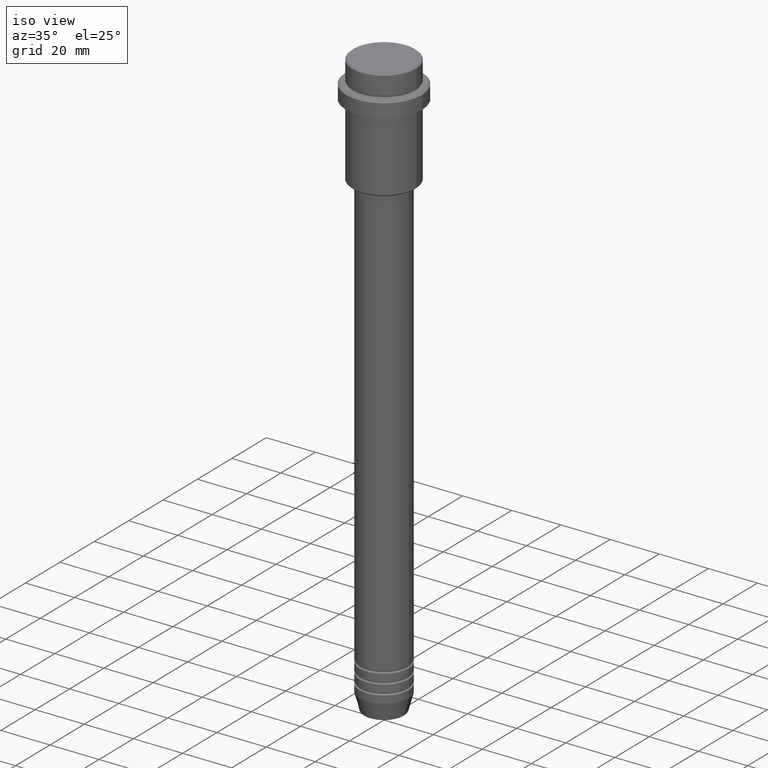
[diagram: clean part render]
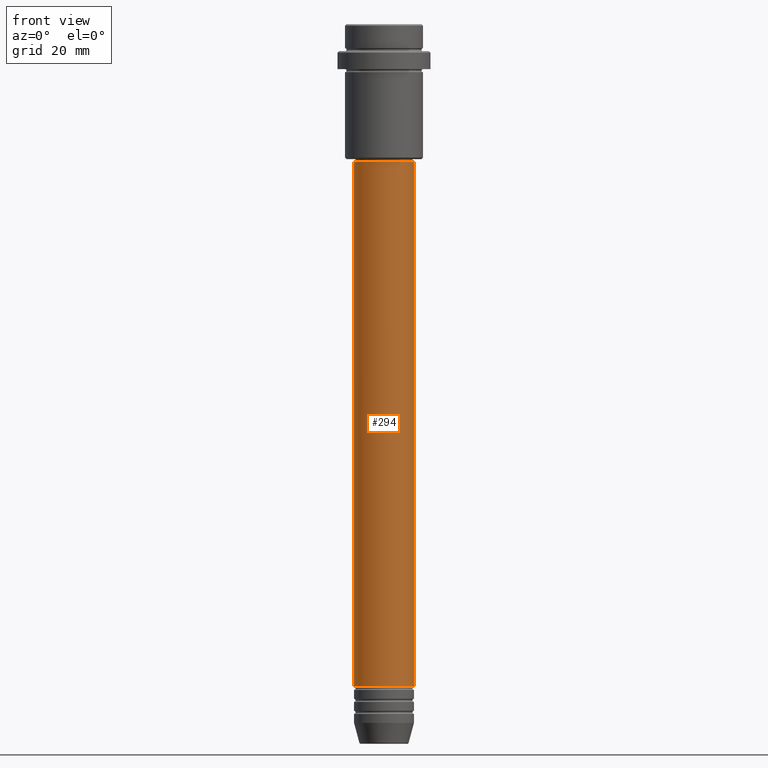
[diagram: tour spotlight — one face highlighted and labeled with its STEP entity id]
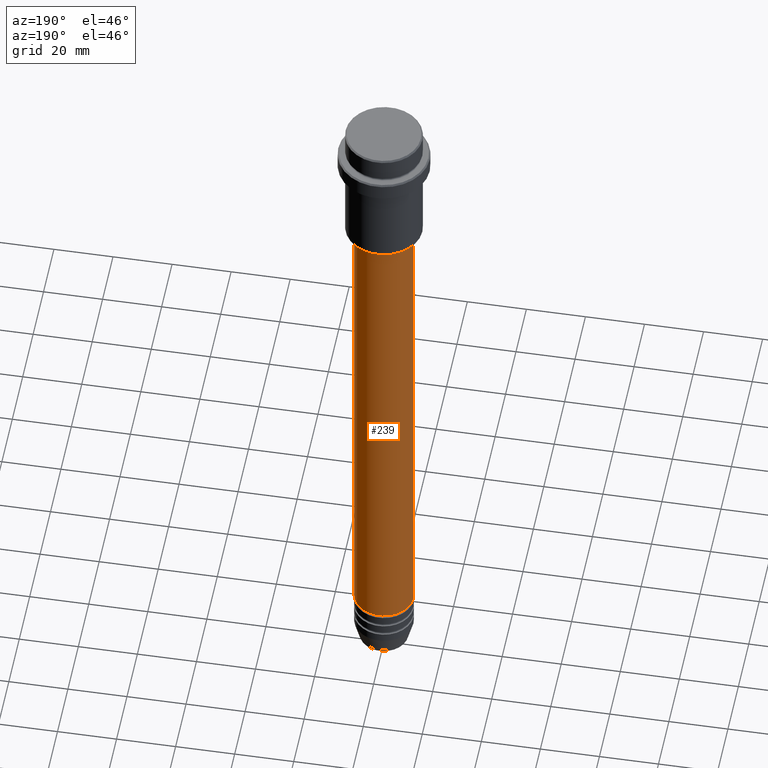
[diagram: tour spotlight — one face highlighted and labeled with its STEP entity id]
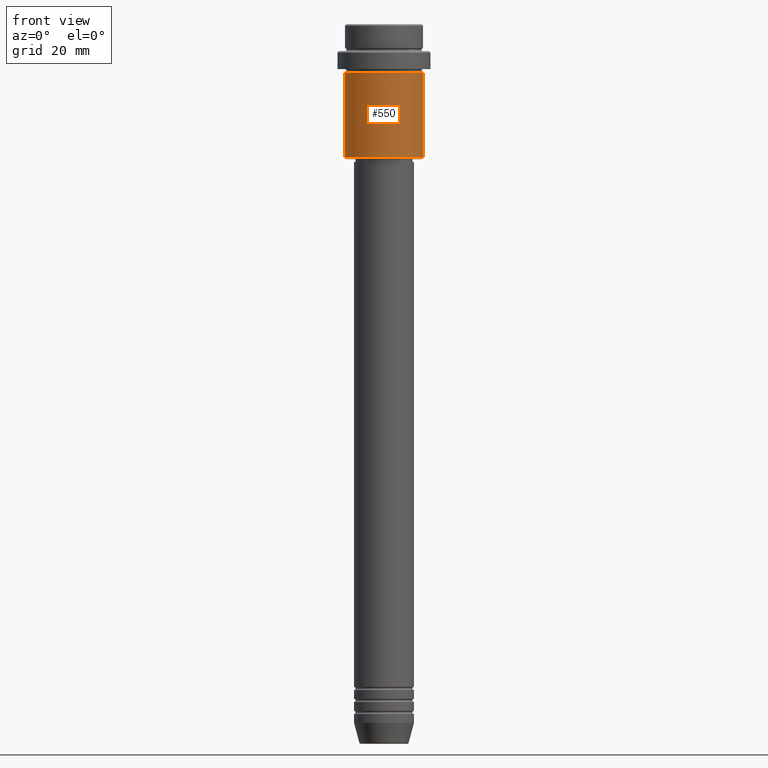
[diagram: tour spotlight — one face highlighted and labeled with its STEP entity id]
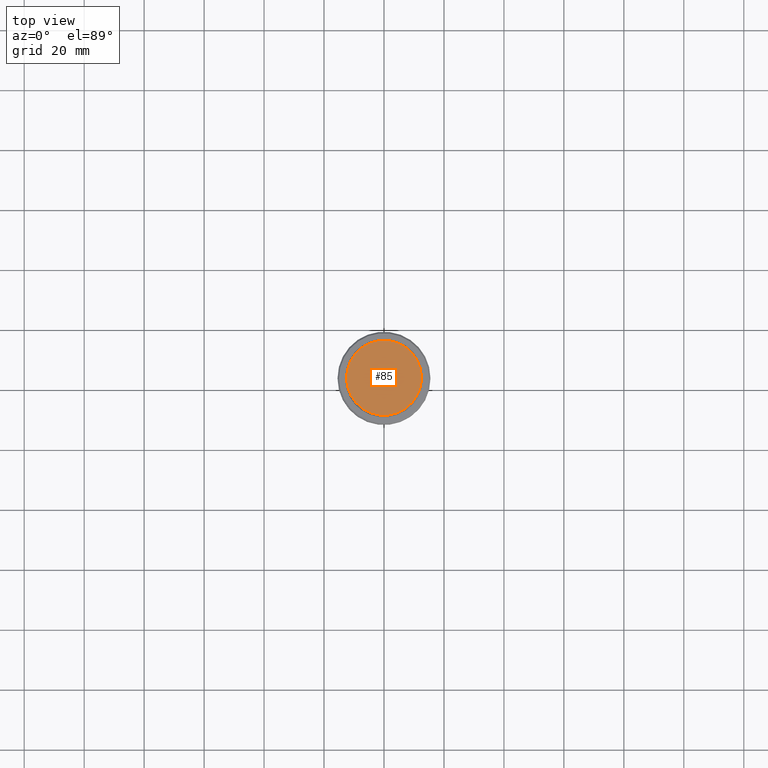
[diagram: tour spotlight — one face highlighted and labeled with its STEP entity id]
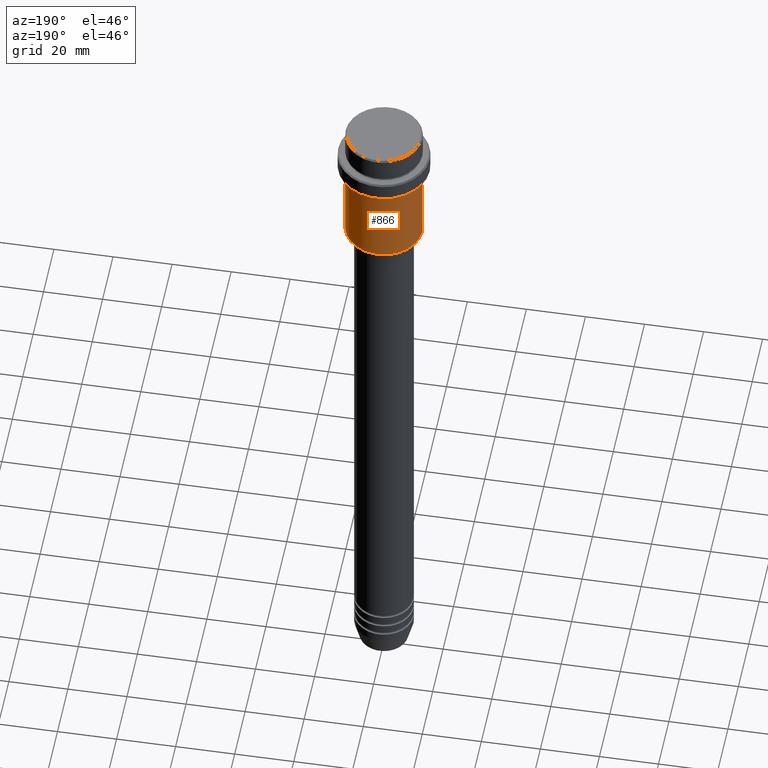
[diagram: tour spotlight — one face highlighted and labeled with its STEP entity id]
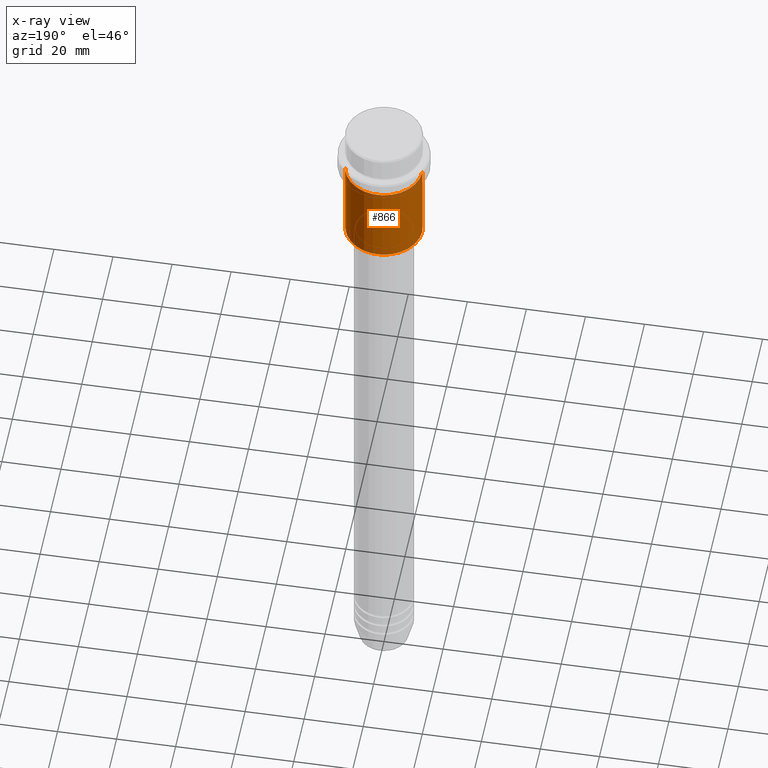
[diagram: x-ray of the same camera — body ghosted, this tour face saturated]
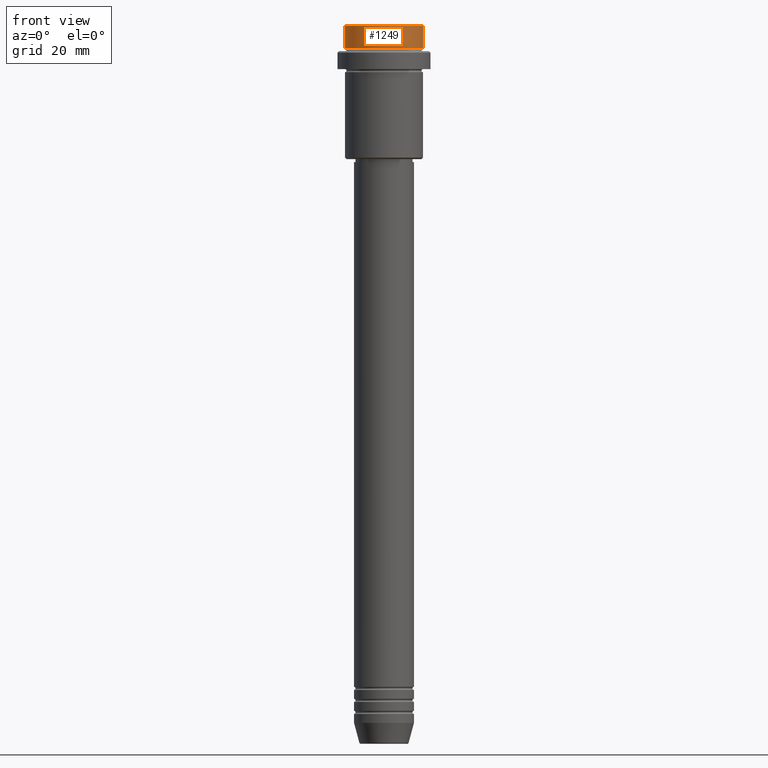
[diagram: tour spotlight — one face highlighted and labeled with its STEP entity id]
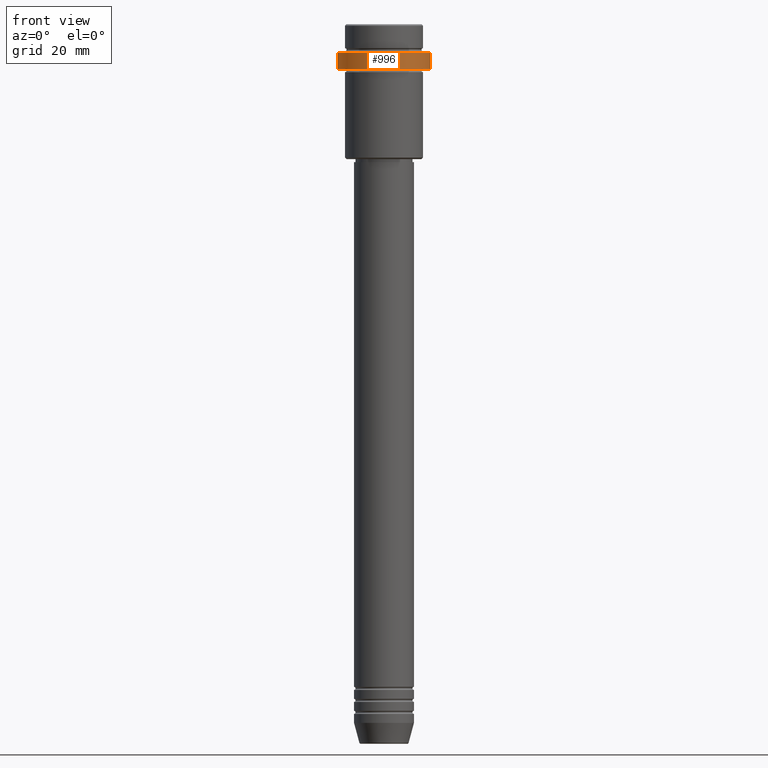
[diagram: tour spotlight — one face highlighted and labeled with its STEP entity id]
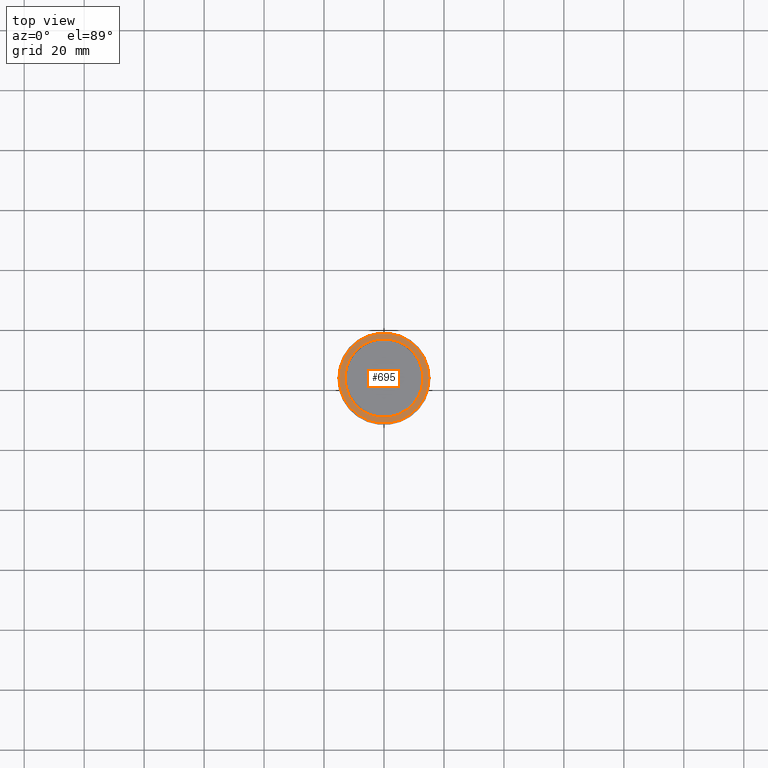
[diagram: tour spotlight — one face highlighted and labeled with its STEP entity id]
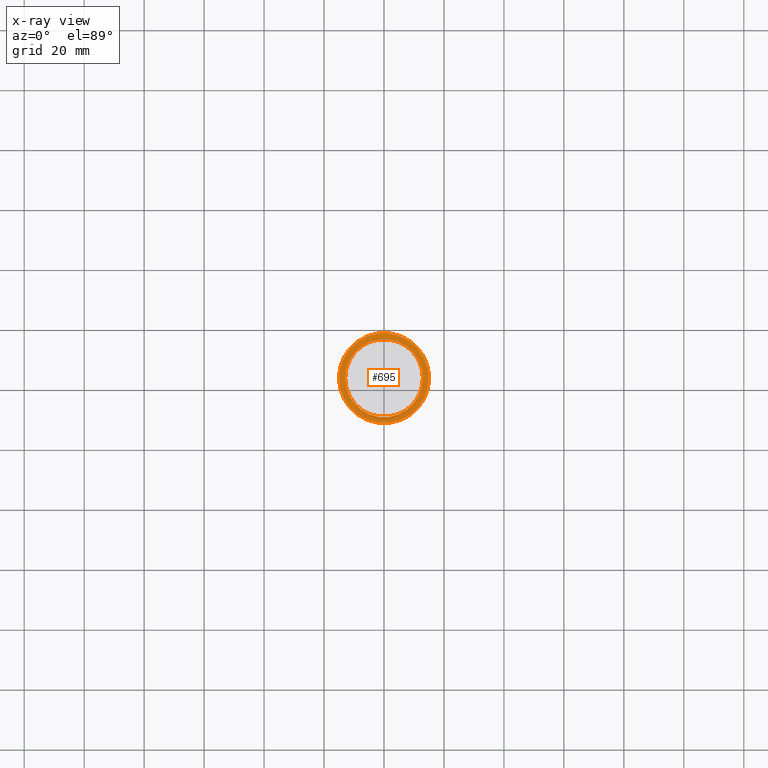
[diagram: x-ray of the same camera — body ghosted, this tour face saturated]
A machine part: a face-by-face anatomy tour. The part has 52 B-rep faces; the first image is the clean iso view, then the 8 largest visible faces are spotlighted one at a time (largest first), each with its STEP entity span.

Face 1 — front view, entity #294. In plain terms, the highlighted cylindrical surface (edge-blend (fillet) strip) has radius 10 mm, axis along (-0, -0, 1).
Definition (entity closure, byte-faithful):
#16 = DIRECTION ( 'NONE',  ( 1.000000000000000000, 0.000000000000000000, 0.000000000000000000 ) ) ;
#55 = CARTESIAN_POINT ( 'NONE',  ( 10.00000000000000178, 0.000000000000000000, -46.00000000000002132 ) ) ;
#65 = CARTESIAN_POINT ( 'NONE',  ( -10.00000000000000178, 1.224646799147353454E-15, -46.00000000000002132 ) ) ;
#144 = VECTOR ( 'NONE', #1178, 1000.000000000000000 ) ;
#179 = EDGE_CURVE ( 'NONE', #1399, #967, #951, .T. ) ;
#198 = LINE ( 'NONE', #728, #1027 ) ;
#199 = DIRECTION ( 'NONE',  ( -0.000000000000000000, -0.000000000000000000, 1.000000000000000000 ) ) ;
#220 = CARTESIAN_POINT ( 'NONE',  ( 0.000000000000000000, 0.000000000000000000, 0.000000000000000000 ) ) ;
#294 = ADVANCED_FACE ( 'NONE', ( #1221 ), #1334, .T. ) ;
#297 = CARTESIAN_POINT ( 'NONE',  ( -10.00000000000000000, 1.224646799147353256E-15, -220.9999999999999432 ) ) ;
#311 = CARTESIAN_POINT ( 'NONE',  ( 0.000000000000000000, 0.000000000000000000, -46.00000000000002132 ) ) ;
#423 = CARTESIAN_POINT ( 'NONE',  ( 10.00000000000000178, 0.000000000000000000, 0.000000000000000000 ) ) ;
#465 = AXIS2_PLACEMENT_3D ( 'NONE', #900, #801, #16 ) ;
#538 = LINE ( 'NONE', #423, #144 ) ;
#547 = EDGE_CURVE ( 'NONE', #969, #1399, #198, .T. ) ;
#584 = ORIENTED_EDGE ( 'NONE', *, *, #804, .T. ) ;
#728 = CARTESIAN_POINT ( 'NONE',  ( -10.00000000000000178, 1.224646799147353454E-15, 0.000000000000000000 ) ) ;
#746 = CIRCLE ( 'NONE', #465, 10.00000000000000000 ) ;
#801 = DIRECTION ( 'NONE',  ( -0.000000000000000000, -0.000000000000000000, 1.000000000000000000 ) ) ;
#804 = EDGE_CURVE ( 'NONE', #969, #1023, #746, .T. ) ;
#868 = DIRECTION ( 'NONE',  ( -0.000000000000000000, -0.000000000000000000, 1.000000000000000000 ) ) ;
#900 = CARTESIAN_POINT ( 'NONE',  ( 0.000000000000000000, 0.000000000000000000, -220.9999999999999432 ) ) ;
#934 = ORIENTED_EDGE ( 'NONE', *, *, #547, .F. ) ;
#951 = CIRCLE ( 'NONE', #1238, 10.00000000000000178 ) ;
#967 = VERTEX_POINT ( 'NONE', #55 ) ;
#969 = VERTEX_POINT ( 'NONE', #297 ) ;
#971 = CARTESIAN_POINT ( 'NONE',  ( 10.00000000000000000, 0.000000000000000000, -220.9999999999999432 ) ) ;
#988 = EDGE_LOOP ( 'NONE', ( #934, #584, #998, #994 ) ) ;
#994 = ORIENTED_EDGE ( 'NONE', *, *, #179, .F. ) ;
#998 = ORIENTED_EDGE ( 'NONE', *, *, #1076, .T. ) ;
#999 = DIRECTION ( 'NONE',  ( 1.000000000000000000, 0.000000000000000000, 0.000000000000000000 ) ) ;
#1023 = VERTEX_POINT ( 'NONE', #971 ) ;
#1027 = VECTOR ( 'NONE', #1287, 1000.000000000000000 ) ;
#1076 = EDGE_CURVE ( 'NONE', #1023, #967, #538, .T. ) ;
#1178 = DIRECTION ( 'NONE',  ( -0.000000000000000000, -0.000000000000000000, 1.000000000000000000 ) ) ;
#1221 = FACE_OUTER_BOUND ( 'NONE', #988, .T. ) ;
#1238 = AXIS2_PLACEMENT_3D ( 'NONE', #311, #199, #1416 ) ;
#1282 = AXIS2_PLACEMENT_3D ( 'NONE', #220, #868, #999 ) ;
#1287 = DIRECTION ( 'NONE',  ( -0.000000000000000000, -0.000000000000000000, 1.000000000000000000 ) ) ;
#1334 = CYLINDRICAL_SURFACE ( 'NONE', #1282, 10.00000000000000178 ) ;
#1399 = VERTEX_POINT ( 'NONE', #65 ) ;
#1416 = DIRECTION ( 'NONE',  ( 1.000000000000000000, 0.000000000000000000, 0.000000000000000000 ) ) ;

Face 2 — auxiliary view, entity #239. In plain terms, the highlighted cylindrical surface (edge-blend (fillet) strip) has radius 10 mm, axis along (-0, -0, 1).
Definition (entity closure, byte-faithful):
#7 = AXIS2_PLACEMENT_3D ( 'NONE', #878, #677, #473 ) ;
#55 = CARTESIAN_POINT ( 'NONE',  ( 10.00000000000000178, 0.000000000000000000, -46.00000000000002132 ) ) ;
#65 = CARTESIAN_POINT ( 'NONE',  ( -10.00000000000000178, 1.224646799147353454E-15, -46.00000000000002132 ) ) ;
#144 = VECTOR ( 'NONE', #1178, 1000.000000000000000 ) ;
#187 = CYLINDRICAL_SURFACE ( 'NONE', #391, 10.00000000000000178 ) ;
#196 = ORIENTED_EDGE ( 'NONE', *, *, #1076, .F. ) ;
#198 = LINE ( 'NONE', #728, #1027 ) ;
#239 = ADVANCED_FACE ( 'NONE', ( #753 ), #187, .T. ) ;
#261 = CIRCLE ( 'NONE', #867, 10.00000000000000178 ) ;
#297 = CARTESIAN_POINT ( 'NONE',  ( -10.00000000000000000, 1.224646799147353256E-15, -220.9999999999999432 ) ) ;
#391 = AXIS2_PLACEMENT_3D ( 'NONE', #1310, #722, #516 ) ;
#423 = CARTESIAN_POINT ( 'NONE',  ( 10.00000000000000178, 0.000000000000000000, 0.000000000000000000 ) ) ;
#466 = ORIENTED_EDGE ( 'NONE', *, *, #1161, .T. ) ;
#473 = DIRECTION ( 'NONE',  ( 1.000000000000000000, 0.000000000000000000, 0.000000000000000000 ) ) ;
#516 = DIRECTION ( 'NONE',  ( 1.000000000000000000, 0.000000000000000000, 0.000000000000000000 ) ) ;
#538 = LINE ( 'NONE', #423, #144 ) ;
#547 = EDGE_CURVE ( 'NONE', #969, #1399, #198, .T. ) ;
#677 = DIRECTION ( 'NONE',  ( -0.000000000000000000, -0.000000000000000000, 1.000000000000000000 ) ) ;
#722 = DIRECTION ( 'NONE',  ( -0.000000000000000000, -0.000000000000000000, 1.000000000000000000 ) ) ;
#728 = CARTESIAN_POINT ( 'NONE',  ( -10.00000000000000178, 1.224646799147353454E-15, 0.000000000000000000 ) ) ;
#753 = FACE_OUTER_BOUND ( 'NONE', #1042, .T. ) ;
#845 = DIRECTION ( 'NONE',  ( 1.000000000000000000, 0.000000000000000000, 0.000000000000000000 ) ) ;
#867 = AXIS2_PLACEMENT_3D ( 'NONE', #1206, #1407, #845 ) ;
#878 = CARTESIAN_POINT ( 'NONE',  ( 0.000000000000000000, 0.000000000000000000, -220.9999999999999432 ) ) ;
#912 = ORIENTED_EDGE ( 'NONE', *, *, #547, .T. ) ;
#967 = VERTEX_POINT ( 'NONE', #55 ) ;
#969 = VERTEX_POINT ( 'NONE', #297 ) ;
#971 = CARTESIAN_POINT ( 'NONE',  ( 10.00000000000000000, 0.000000000000000000, -220.9999999999999432 ) ) ;
#1023 = VERTEX_POINT ( 'NONE', #971 ) ;
#1027 = VECTOR ( 'NONE', #1287, 1000.000000000000000 ) ;
#1042 = EDGE_LOOP ( 'NONE', ( #466, #912, #1231, #196 ) ) ;
#1076 = EDGE_CURVE ( 'NONE', #1023, #967, #538, .T. ) ;
#1083 = EDGE_CURVE ( 'NONE', #967, #1399, #261, .T. ) ;
#1161 = EDGE_CURVE ( 'NONE', #1023, #969, #1354, .T. ) ;
#1178 = DIRECTION ( 'NONE',  ( -0.000000000000000000, -0.000000000000000000, 1.000000000000000000 ) ) ;
#1206 = CARTESIAN_POINT ( 'NONE',  ( 0.000000000000000000, 0.000000000000000000, -46.00000000000002132 ) ) ;
#1231 = ORIENTED_EDGE ( 'NONE', *, *, #1083, .F. ) ;
#1287 = DIRECTION ( 'NONE',  ( -0.000000000000000000, -0.000000000000000000, 1.000000000000000000 ) ) ;
#1310 = CARTESIAN_POINT ( 'NONE',  ( 0.000000000000000000, 0.000000000000000000, 0.000000000000000000 ) ) ;
#1354 = CIRCLE ( 'NONE', #7, 10.00000000000000000 ) ;
#1399 = VERTEX_POINT ( 'NONE', #65 ) ;
#1407 = DIRECTION ( 'NONE',  ( -0.000000000000000000, -0.000000000000000000, 1.000000000000000000 ) ) ;

Face 3 — front view, entity #550. In plain terms, the highlighted cylindrical surface (partial cylindrical patch) has radius 13 mm, axis along (-0, -0, 1).
Definition (entity closure, byte-faithful):
#10 = VERTEX_POINT ( 'NONE', #1275 ) ;
#30 = VERTEX_POINT ( 'NONE', #295 ) ;
#80 = VERTEX_POINT ( 'NONE', #718 ) ;
#243 = DIRECTION ( 'NONE',  ( -0.000000000000000000, -0.000000000000000000, 1.000000000000000000 ) ) ;
#295 = CARTESIAN_POINT ( 'NONE',  ( -13.00000000000000000, 1.592040838891559095E-15, -16.00000000000000000 ) ) ;
#296 = DIRECTION ( 'NONE',  ( -1.000000000000000000, 0.000000000000000000, 0.000000000000000000 ) ) ;
#380 = EDGE_CURVE ( 'NONE', #30, #80, #725, .T. ) ;
#389 = DIRECTION ( 'NONE',  ( -0.000000000000000000, -0.000000000000000000, 1.000000000000000000 ) ) ;
#418 = CYLINDRICAL_SURFACE ( 'NONE', #883, 13.00000000000000000 ) ;
#442 = AXIS2_PLACEMENT_3D ( 'NONE', #624, #499, #296 ) ;
#499 = DIRECTION ( 'NONE',  ( -0.000000000000000000, -0.000000000000000000, 1.000000000000000000 ) ) ;
#519 = ORIENTED_EDGE ( 'NONE', *, *, #380, .F. ) ;
#550 = ADVANCED_FACE ( 'NONE', ( #1108 ), #418, .T. ) ;
#583 = CARTESIAN_POINT ( 'NONE',  ( -13.00000000000000000, 1.592040838891559095E-15, 0.000000000000000000 ) ) ;
#624 = CARTESIAN_POINT ( 'NONE',  ( 0.000000000000000000, 0.000000000000000000, -44.50000000000007105 ) ) ;
#627 = DIRECTION ( 'NONE',  ( -0.000000000000000000, -0.000000000000000000, 1.000000000000000000 ) ) ;
#668 = DIRECTION ( 'NONE',  ( -0.000000000000000000, -0.000000000000000000, 1.000000000000000000 ) ) ;
#690 = LINE ( 'NONE', #583, #1374 ) ;
#718 = CARTESIAN_POINT ( 'NONE',  ( 13.00000000000000000, 0.000000000000000000, -16.00000000000000000 ) ) ;
#725 = CIRCLE ( 'NONE', #1190, 13.00000000000000000 ) ;
#727 = CIRCLE ( 'NONE', #442, 13.00000000000000000 ) ;
#761 = EDGE_LOOP ( 'NONE', ( #1378, #1283, #1313, #519 ) ) ;
#778 = EDGE_CURVE ( 'NONE', #10, #30, #690, .T. ) ;
#883 = AXIS2_PLACEMENT_3D ( 'NONE', #1274, #627, #1295 ) ;
#885 = VECTOR ( 'NONE', #389, 1000.000000000000000 ) ;
#897 = CARTESIAN_POINT ( 'NONE',  ( 0.000000000000000000, 0.000000000000000000, -16.00000000000000000 ) ) ;
#920 = LINE ( 'NONE', #1366, #885 ) ;
#970 = EDGE_CURVE ( 'NONE', #1109, #80, #920, .T. ) ;
#986 = CARTESIAN_POINT ( 'NONE',  ( 13.00000000000000000, 0.000000000000000000, -44.50000000000007105 ) ) ;
#1108 = FACE_OUTER_BOUND ( 'NONE', #761, .T. ) ;
#1109 = VERTEX_POINT ( 'NONE', #986 ) ;
#1110 = DIRECTION ( 'NONE',  ( 1.000000000000000000, 0.000000000000000000, 0.000000000000000000 ) ) ;
#1190 = AXIS2_PLACEMENT_3D ( 'NONE', #897, #668, #1110 ) ;
#1274 = CARTESIAN_POINT ( 'NONE',  ( 0.000000000000000000, 0.000000000000000000, 0.000000000000000000 ) ) ;
#1275 = CARTESIAN_POINT ( 'NONE',  ( -13.00000000000000000, 1.592040838891559095E-15, -44.50000000000007105 ) ) ;
#1283 = ORIENTED_EDGE ( 'NONE', *, *, #1346, .T. ) ;
#1295 = DIRECTION ( 'NONE',  ( 1.000000000000000000, 0.000000000000000000, 0.000000000000000000 ) ) ;
#1313 = ORIENTED_EDGE ( 'NONE', *, *, #970, .T. ) ;
#1346 = EDGE_CURVE ( 'NONE', #10, #1109, #727, .T. ) ;
#1366 = CARTESIAN_POINT ( 'NONE',  ( 13.00000000000000000, 0.000000000000000000, 0.000000000000000000 ) ) ;
#1374 = VECTOR ( 'NONE', #243, 1000.000000000000000 ) ;
#1378 = ORIENTED_EDGE ( 'NONE', *, *, #778, .F. ) ;

Face 4 — top view, entity #85. In plain terms, the highlighted planar face has unit normal (0, -0, 1).
Definition (entity closure, byte-faithful):
#15 = CARTESIAN_POINT ( 'NONE',  ( 0.000000000000000000, 0.000000000000000000, 0.000000000000000000 ) ) ;
#52 = CIRCLE ( 'NONE', #585, 12.50000000000006750 ) ;
#64 = CARTESIAN_POINT ( 'NONE',  ( 0.000000000000000000, 0.000000000000000000, 0.000000000000000000 ) ) ;
#85 = ADVANCED_FACE ( 'NONE', ( #1351 ), #1044, .T. ) ;
#175 = DIRECTION ( 'NONE',  ( 1.000000000000000000, 0.000000000000000000, 0.000000000000000000 ) ) ;
#218 = VERTEX_POINT ( 'NONE', #1085 ) ;
#333 = EDGE_LOOP ( 'NONE', ( #872, #926 ) ) ;
#371 = CIRCLE ( 'NONE', #1285, 12.50000000000006750 ) ;
#372 = DIRECTION ( 'NONE',  ( 0.000000000000000000, -0.000000000000000000, 1.000000000000000000 ) ) ;
#469 = DIRECTION ( 'NONE',  ( 1.000000000000000000, 0.000000000000000000, 0.000000000000000000 ) ) ;
#502 = AXIS2_PLACEMENT_3D ( 'NONE', #64, #372, #805 ) ;
#581 = CARTESIAN_POINT ( 'NONE',  ( -12.50000000000006750, 0.000000000000000000, 0.000000000000000000 ) ) ;
#585 = AXIS2_PLACEMENT_3D ( 'NONE', #15, #1228, #469 ) ;
#598 = CARTESIAN_POINT ( 'NONE',  ( 0.000000000000000000, 0.000000000000000000, 0.000000000000000000 ) ) ;
#805 = DIRECTION ( 'NONE',  ( 1.000000000000000000, 0.000000000000000000, 0.000000000000000000 ) ) ;
#872 = ORIENTED_EDGE ( 'NONE', *, *, #1357, .T. ) ;
#926 = ORIENTED_EDGE ( 'NONE', *, *, #1204, .T. ) ;
#1044 = PLANE ( 'NONE',  #502 ) ;
#1085 = CARTESIAN_POINT ( 'NONE',  ( 12.50000000000006750, 1.561424668912879450E-15, 0.000000000000000000 ) ) ;
#1197 = VERTEX_POINT ( 'NONE', #581 ) ;
#1204 = EDGE_CURVE ( 'NONE', #218, #1197, #52, .T. ) ;
#1228 = DIRECTION ( 'NONE',  ( -0.000000000000000000, -0.000000000000000000, 1.000000000000000000 ) ) ;
#1285 = AXIS2_PLACEMENT_3D ( 'NONE', #598, #1359, #175 ) ;
#1351 = FACE_OUTER_BOUND ( 'NONE', #333, .T. ) ;
#1357 = EDGE_CURVE ( 'NONE', #1197, #218, #371, .T. ) ;
#1359 = DIRECTION ( 'NONE',  ( -0.000000000000000000, -0.000000000000000000, 1.000000000000000000 ) ) ;

Face 5 — auxiliary view, entity #866. An x-ray twin of the same camera follows (body ghosted, this face saturated) — the face is partly hidden behind the body. In plain terms, the highlighted cylindrical surface (partial cylindrical patch) has radius 13 mm, axis along (-0, -0, 1).
Definition (entity closure, byte-faithful):
#10 = VERTEX_POINT ( 'NONE', #1275 ) ;
#14 = EDGE_LOOP ( 'NONE', ( #886, #254, #204, #1014 ) ) ;
#30 = VERTEX_POINT ( 'NONE', #295 ) ;
#33 = FACE_OUTER_BOUND ( 'NONE', #14, .T. ) ;
#63 = CIRCLE ( 'NONE', #157, 13.00000000000000000 ) ;
#68 = AXIS2_PLACEMENT_3D ( 'NONE', #894, #1337, #513 ) ;
#80 = VERTEX_POINT ( 'NONE', #718 ) ;
#157 = AXIS2_PLACEMENT_3D ( 'NONE', #379, #288, #273 ) ;
#166 = CIRCLE ( 'NONE', #1258, 13.00000000000000000 ) ;
#204 = ORIENTED_EDGE ( 'NONE', *, *, #1400, .F. ) ;
#243 = DIRECTION ( 'NONE',  ( -0.000000000000000000, -0.000000000000000000, 1.000000000000000000 ) ) ;
#254 = ORIENTED_EDGE ( 'NONE', *, *, #778, .T. ) ;
#273 = DIRECTION ( 'NONE',  ( 1.000000000000000000, 0.000000000000000000, 0.000000000000000000 ) ) ;
#288 = DIRECTION ( 'NONE',  ( -0.000000000000000000, -0.000000000000000000, 1.000000000000000000 ) ) ;
#295 = CARTESIAN_POINT ( 'NONE',  ( -13.00000000000000000, 1.592040838891559095E-15, -16.00000000000000000 ) ) ;
#379 = CARTESIAN_POINT ( 'NONE',  ( 0.000000000000000000, 0.000000000000000000, -16.00000000000000000 ) ) ;
#389 = DIRECTION ( 'NONE',  ( -0.000000000000000000, -0.000000000000000000, 1.000000000000000000 ) ) ;
#470 = CYLINDRICAL_SURFACE ( 'NONE', #68, 13.00000000000000000 ) ;
#513 = DIRECTION ( 'NONE',  ( 1.000000000000000000, 0.000000000000000000, 0.000000000000000000 ) ) ;
#583 = CARTESIAN_POINT ( 'NONE',  ( -13.00000000000000000, 1.592040838891559095E-15, 0.000000000000000000 ) ) ;
#679 = CARTESIAN_POINT ( 'NONE',  ( 0.000000000000000000, 0.000000000000000000, -44.50000000000007105 ) ) ;
#690 = LINE ( 'NONE', #583, #1374 ) ;
#718 = CARTESIAN_POINT ( 'NONE',  ( 13.00000000000000000, 0.000000000000000000, -16.00000000000000000 ) ) ;
#778 = EDGE_CURVE ( 'NONE', #10, #30, #690, .T. ) ;
#864 = EDGE_CURVE ( 'NONE', #1109, #10, #166, .T. ) ;
#866 = ADVANCED_FACE ( 'NONE', ( #33 ), #470, .T. ) ;
#885 = VECTOR ( 'NONE', #389, 1000.000000000000000 ) ;
#886 = ORIENTED_EDGE ( 'NONE', *, *, #864, .T. ) ;
#894 = CARTESIAN_POINT ( 'NONE',  ( 0.000000000000000000, 0.000000000000000000, 0.000000000000000000 ) ) ;
#920 = LINE ( 'NONE', #1366, #885 ) ;
#970 = EDGE_CURVE ( 'NONE', #1109, #80, #920, .T. ) ;
#986 = CARTESIAN_POINT ( 'NONE',  ( 13.00000000000000000, 0.000000000000000000, -44.50000000000007105 ) ) ;
#1012 = DIRECTION ( 'NONE',  ( -1.000000000000000000, 0.000000000000000000, 0.000000000000000000 ) ) ;
#1014 = ORIENTED_EDGE ( 'NONE', *, *, #970, .F. ) ;
#1109 = VERTEX_POINT ( 'NONE', #986 ) ;
#1122 = DIRECTION ( 'NONE',  ( -0.000000000000000000, -0.000000000000000000, 1.000000000000000000 ) ) ;
#1258 = AXIS2_PLACEMENT_3D ( 'NONE', #679, #1122, #1012 ) ;
#1275 = CARTESIAN_POINT ( 'NONE',  ( -13.00000000000000000, 1.592040838891559095E-15, -44.50000000000007105 ) ) ;
#1337 = DIRECTION ( 'NONE',  ( -0.000000000000000000, -0.000000000000000000, 1.000000000000000000 ) ) ;
#1366 = CARTESIAN_POINT ( 'NONE',  ( 13.00000000000000000, 0.000000000000000000, 0.000000000000000000 ) ) ;
#1374 = VECTOR ( 'NONE', #243, 1000.000000000000000 ) ;
#1400 = EDGE_CURVE ( 'NONE', #80, #30, #63, .T. ) ;

Face 6 — front view, entity #1249. In plain terms, the highlighted cylindrical surface (partial cylindrical patch) has radius 13 mm, axis along (-0, -0, 1).
Definition (entity closure, byte-faithful):
#112 = CARTESIAN_POINT ( 'NONE',  ( 12.99999999999999822, 0.000000000000000000, -0.4999999999999483746 ) ) ;
#114 = VERTEX_POINT ( 'NONE', #545 ) ;
#123 = CYLINDRICAL_SURFACE ( 'NONE', #306, 12.99999999999999822 ) ;
#133 = LINE ( 'NONE', #1236, #582 ) ;
#150 = DIRECTION ( 'NONE',  ( -0.000000000000000000, -0.000000000000000000, 1.000000000000000000 ) ) ;
#228 = AXIS2_PLACEMENT_3D ( 'NONE', #1007, #555, #786 ) ;
#233 = EDGE_CURVE ( 'NONE', #340, #1091, #1259, .T. ) ;
#284 = ORIENTED_EDGE ( 'NONE', *, *, #233, .T. ) ;
#293 = EDGE_CURVE ( 'NONE', #412, #114, #904, .T. ) ;
#306 = AXIS2_PLACEMENT_3D ( 'NONE', #688, #1352, #1016 ) ;
#326 = DIRECTION ( 'NONE',  ( 1.000000000000000000, 0.000000000000000000, 0.000000000000000000 ) ) ;
#340 = VERTEX_POINT ( 'NONE', #112 ) ;
#412 = VERTEX_POINT ( 'NONE', #1041 ) ;
#545 = CARTESIAN_POINT ( 'NONE',  ( 12.99999999999999822, 0.000000000000000000, -7.999999999999998224 ) ) ;
#555 = DIRECTION ( 'NONE',  ( -0.000000000000000000, -0.000000000000000000, 1.000000000000000000 ) ) ;
#582 = VECTOR ( 'NONE', #150, 1000.000000000000000 ) ;
#610 = EDGE_LOOP ( 'NONE', ( #732, #1138, #808, #284 ) ) ;
#631 = CARTESIAN_POINT ( 'NONE',  ( -12.99999999999999822, 1.592040838891558898E-15, 0.000000000000000000 ) ) ;
#688 = CARTESIAN_POINT ( 'NONE',  ( 0.000000000000000000, 0.000000000000000000, 0.000000000000000000 ) ) ;
#732 = ORIENTED_EDGE ( 'NONE', *, *, #1087, .F. ) ;
#752 = VECTOR ( 'NONE', #1073, 1000.000000000000000 ) ;
#786 = DIRECTION ( 'NONE',  ( 1.000000000000000000, 0.000000000000000000, 0.000000000000000000 ) ) ;
#788 = FACE_OUTER_BOUND ( 'NONE', #610, .T. ) ;
#791 = EDGE_CURVE ( 'NONE', #114, #340, #133, .T. ) ;
#808 = ORIENTED_EDGE ( 'NONE', *, *, #791, .T. ) ;
#904 = CIRCLE ( 'NONE', #228, 12.99999999999999822 ) ;
#964 = LINE ( 'NONE', #631, #752 ) ;
#980 = AXIS2_PLACEMENT_3D ( 'NONE', #1176, #1301, #326 ) ;
#1007 = CARTESIAN_POINT ( 'NONE',  ( 0.000000000000000000, 0.000000000000000000, -7.999999999999998224 ) ) ;
#1016 = DIRECTION ( 'NONE',  ( 1.000000000000000000, 0.000000000000000000, 0.000000000000000000 ) ) ;
#1041 = CARTESIAN_POINT ( 'NONE',  ( -12.99999999999999822, 1.592040838891558898E-15, -7.999999999999998224 ) ) ;
#1067 = CARTESIAN_POINT ( 'NONE',  ( -12.99999999999999822, 1.592040838891558898E-15, -0.4999999999999483746 ) ) ;
#1073 = DIRECTION ( 'NONE',  ( -0.000000000000000000, -0.000000000000000000, 1.000000000000000000 ) ) ;
#1087 = EDGE_CURVE ( 'NONE', #412, #1091, #964, .T. ) ;
#1091 = VERTEX_POINT ( 'NONE', #1067 ) ;
#1138 = ORIENTED_EDGE ( 'NONE', *, *, #293, .T. ) ;
#1176 = CARTESIAN_POINT ( 'NONE',  ( 0.000000000000000000, 0.000000000000000000, -0.4999999999999483746 ) ) ;
#1236 = CARTESIAN_POINT ( 'NONE',  ( 12.99999999999999822, 0.000000000000000000, 0.000000000000000000 ) ) ;
#1249 = ADVANCED_FACE ( 'NONE', ( #788 ), #123, .T. ) ;
#1259 = CIRCLE ( 'NONE', #980, 12.99999999999999822 ) ;
#1301 = DIRECTION ( 'NONE',  ( 0.000000000000000000, 0.000000000000000000, -1.000000000000000000 ) ) ;
#1352 = DIRECTION ( 'NONE',  ( -0.000000000000000000, -0.000000000000000000, 1.000000000000000000 ) ) ;

Face 7 — front view, entity #996. In plain terms, the highlighted cylindrical surface (partial cylindrical patch) has radius 15.5 mm, axis along (-0, -0, 1).
Definition (entity closure, byte-faithful):
#6 = ORIENTED_EDGE ( 'NONE', *, *, #990, .T. ) ;
#67 = DIRECTION ( 'NONE',  ( 1.000000000000000000, 0.000000000000000000, 0.000000000000000000 ) ) ;
#91 = DIRECTION ( 'NONE',  ( -0.000000000000000000, -0.000000000000000000, 1.000000000000000000 ) ) ;
#103 = DIRECTION ( 'NONE',  ( -0.000000000000000000, -0.000000000000000000, 1.000000000000000000 ) ) ;
#126 = EDGE_CURVE ( 'NONE', #1339, #1321, #968, .T. ) ;
#169 = CARTESIAN_POINT ( 'NONE',  ( -15.50000000000000000, 1.898202538678397557E-15, -9.500000000000014211 ) ) ;
#217 = DIRECTION ( 'NONE',  ( -0.000000000000000000, -0.000000000000000000, 1.000000000000000000 ) ) ;
#230 = DIRECTION ( 'NONE',  ( -0.000000000000000000, -0.000000000000000000, 1.000000000000000000 ) ) ;
#240 = ORIENTED_EDGE ( 'NONE', *, *, #922, .T. ) ;
#280 = AXIS2_PLACEMENT_3D ( 'NONE', #1412, #91, #329 ) ;
#329 = DIRECTION ( 'NONE',  ( 1.000000000000000000, 0.000000000000000000, 0.000000000000000000 ) ) ;
#352 = CARTESIAN_POINT ( 'NONE',  ( 15.50000000000000000, 0.000000000000000000, -15.00000000000000178 ) ) ;
#364 = CARTESIAN_POINT ( 'NONE',  ( 15.50000000000000000, 0.000000000000000000, -9.500000000000014211 ) ) ;
#478 = DIRECTION ( 'NONE',  ( 1.000000000000000000, 0.000000000000000000, 0.000000000000000000 ) ) ;
#553 = ORIENTED_EDGE ( 'NONE', *, *, #126, .F. ) ;
#575 = AXIS2_PLACEMENT_3D ( 'NONE', #613, #1388, #67 ) ;
#613 = CARTESIAN_POINT ( 'NONE',  ( 0.000000000000000000, 0.000000000000000000, -9.500000000000014211 ) ) ;
#662 = ORIENTED_EDGE ( 'NONE', *, *, #1225, .T. ) ;
#689 = AXIS2_PLACEMENT_3D ( 'NONE', #1130, #230, #478 ) ;
#739 = FACE_OUTER_BOUND ( 'NONE', #973, .T. ) ;
#774 = VECTOR ( 'NONE', #217, 1000.000000000000000 ) ;
#812 = CARTESIAN_POINT ( 'NONE',  ( -15.50000000000000000, 1.898202538678397557E-15, -15.00000000000000178 ) ) ;
#828 = VERTEX_POINT ( 'NONE', #352 ) ;
#870 = LINE ( 'NONE', #1306, #774 ) ;
#907 = CIRCLE ( 'NONE', #689, 15.50000000000000000 ) ;
#922 = EDGE_CURVE ( 'NONE', #1177, #1321, #1123, .T. ) ;
#968 = LINE ( 'NONE', #1078, #1344 ) ;
#973 = EDGE_LOOP ( 'NONE', ( #553, #662, #6, #240 ) ) ;
#978 = CYLINDRICAL_SURFACE ( 'NONE', #280, 15.50000000000000000 ) ;
#990 = EDGE_CURVE ( 'NONE', #828, #1177, #870, .T. ) ;
#996 = ADVANCED_FACE ( 'NONE', ( #739 ), #978, .T. ) ;
#1078 = CARTESIAN_POINT ( 'NONE',  ( -15.50000000000000000, 1.898202538678397557E-15, 0.000000000000000000 ) ) ;
#1123 = CIRCLE ( 'NONE', #575, 15.50000000000000000 ) ;
#1130 = CARTESIAN_POINT ( 'NONE',  ( 0.000000000000000000, 0.000000000000000000, -15.00000000000000178 ) ) ;
#1177 = VERTEX_POINT ( 'NONE', #364 ) ;
#1225 = EDGE_CURVE ( 'NONE', #1339, #828, #907, .T. ) ;
#1306 = CARTESIAN_POINT ( 'NONE',  ( 15.50000000000000000, 0.000000000000000000, 0.000000000000000000 ) ) ;
#1321 = VERTEX_POINT ( 'NONE', #169 ) ;
#1339 = VERTEX_POINT ( 'NONE', #812 ) ;
#1344 = VECTOR ( 'NONE', #103, 1000.000000000000000 ) ;
#1388 = DIRECTION ( 'NONE',  ( 0.000000000000000000, 0.000000000000000000, -1.000000000000000000 ) ) ;
#1412 = CARTESIAN_POINT ( 'NONE',  ( 0.000000000000000000, 0.000000000000000000, 0.000000000000000000 ) ) ;

Face 8 — top view, entity #695. An x-ray twin of the same camera follows (body ghosted, this face saturated) — the face is partly hidden behind the body. In plain terms, the highlighted planar face has unit normal (0, -0, 1).
Definition (entity closure, byte-faithful):
#8 = DIRECTION ( 'NONE',  ( 0.000000000000000000, 0.000000000000000000, -1.000000000000000000 ) ) ;
#17 = ORIENTED_EDGE ( 'NONE', *, *, #344, .T. ) ;
#98 = AXIS2_PLACEMENT_3D ( 'NONE', #701, #879, #1137 ) ;
#132 = DIRECTION ( 'NONE',  ( 1.000000000000000000, 0.000000000000000000, 0.000000000000000000 ) ) ;
#142 = CARTESIAN_POINT ( 'NONE',  ( 0.000000000000000000, 0.000000000000000000, -9.000000000000001776 ) ) ;
#152 = VERTEX_POINT ( 'NONE', #426 ) ;
#185 = FACE_BOUND ( 'NONE', #1146, .T. ) ;
#189 = CIRCLE ( 'NONE', #1102, 14.99999999999998579 ) ;
#259 = DIRECTION ( 'NONE',  ( 1.000000000000000000, 0.000000000000000000, 0.000000000000000000 ) ) ;
#277 = CIRCLE ( 'NONE', #1072, 12.99999999999999467 ) ;
#301 = DIRECTION ( 'NONE',  ( 1.000000000000000000, 0.000000000000000000, 0.000000000000000000 ) ) ;
#344 = EDGE_CURVE ( 'NONE', #979, #929, #277, .T. ) ;
#349 = AXIS2_PLACEMENT_3D ( 'NONE', #1384, #1278, #301 ) ;
#355 = CARTESIAN_POINT ( 'NONE',  ( 0.000000000000000000, 0.000000000000000000, -9.000000000000001776 ) ) ;
#381 = CARTESIAN_POINT ( 'NONE',  ( 12.99999999999999467, 0.000000000000000000, -9.000000000000001776 ) ) ;
#426 = CARTESIAN_POINT ( 'NONE',  ( 14.99999999999998579, 1.867586368699712587E-15, -9.000000000000001776 ) ) ;
#451 = CARTESIAN_POINT ( 'NONE',  ( 0.000000000000000000, 0.000000000000000000, -9.000000000000001776 ) ) ;
#501 = AXIS2_PLACEMENT_3D ( 'NONE', #142, #1353, #259 ) ;
#647 = CARTESIAN_POINT ( 'NONE',  ( -12.99999999999999467, 1.592040838891558504E-15, -9.000000000000001776 ) ) ;
#673 = ORIENTED_EDGE ( 'NONE', *, *, #777, .T. ) ;
#684 = DIRECTION ( 'NONE',  ( 1.000000000000000000, 0.000000000000000000, 0.000000000000000000 ) ) ;
#695 = ADVANCED_FACE ( 'NONE', ( #1169, #185 ), #941, .T. ) ;
#701 = CARTESIAN_POINT ( 'NONE',  ( 0.000000000000000000, 0.000000000000000000, -9.000000000000001776 ) ) ;
#716 = EDGE_CURVE ( 'NONE', #1101, #152, #1326, .T. ) ;
#777 = EDGE_CURVE ( 'NONE', #929, #979, #1070, .T. ) ;
#879 = DIRECTION ( 'NONE',  ( -0.000000000000000000, -0.000000000000000000, 1.000000000000000000 ) ) ;
#929 = VERTEX_POINT ( 'NONE', #381 ) ;
#941 = PLANE ( 'NONE',  #349 ) ;
#950 = ORIENTED_EDGE ( 'NONE', *, *, #716, .T. ) ;
#979 = VERTEX_POINT ( 'NONE', #647 ) ;
#1070 = CIRCLE ( 'NONE', #501, 12.99999999999999467 ) ;
#1072 = AXIS2_PLACEMENT_3D ( 'NONE', #451, #8, #684 ) ;
#1090 = EDGE_LOOP ( 'NONE', ( #950, #1373 ) ) ;
#1101 = VERTEX_POINT ( 'NONE', #1299 ) ;
#1102 = AXIS2_PLACEMENT_3D ( 'NONE', #355, #1322, #132 ) ;
#1137 = DIRECTION ( 'NONE',  ( 1.000000000000000000, 0.000000000000000000, 0.000000000000000000 ) ) ;
#1146 = EDGE_LOOP ( 'NONE', ( #673, #17 ) ) ;
#1169 = FACE_OUTER_BOUND ( 'NONE', #1090, .T. ) ;
#1184 = EDGE_CURVE ( 'NONE', #152, #1101, #189, .T. ) ;
#1278 = DIRECTION ( 'NONE',  ( 0.000000000000000000, -0.000000000000000000, 1.000000000000000000 ) ) ;
#1299 = CARTESIAN_POINT ( 'NONE',  ( -14.99999999999998579, 0.000000000000000000, -9.000000000000001776 ) ) ;
#1322 = DIRECTION ( 'NONE',  ( -0.000000000000000000, -0.000000000000000000, 1.000000000000000000 ) ) ;
#1326 = CIRCLE ( 'NONE', #98, 14.99999999999998579 ) ;
#1353 = DIRECTION ( 'NONE',  ( 0.000000000000000000, 0.000000000000000000, -1.000000000000000000 ) ) ;
#1373 = ORIENTED_EDGE ( 'NONE', *, *, #1184, .T. ) ;
#1384 = CARTESIAN_POINT ( 'NONE',  ( 0.000000000000000000, 12.49999999999999289, -9.000000000000001776 ) ) ;